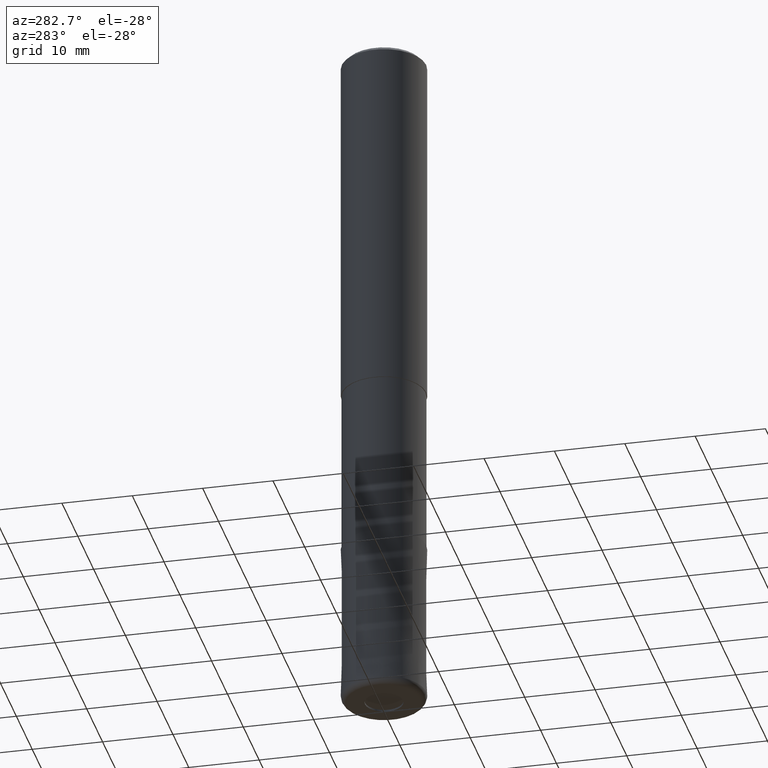
[diagram: clean part render]
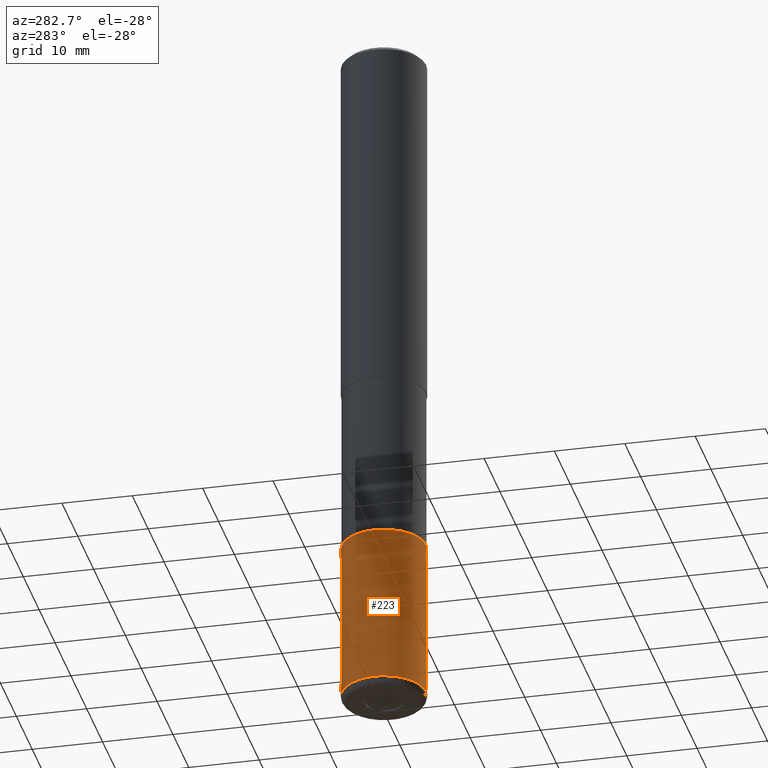
[diagram: same view with one face highlighted and labeled with its STEP entity id]
A machine part, auxiliary view. The second image highlights one B-rep face of the part: STEP entity #223.
In plain terms, the highlighted conical surface has half-angle 0 deg.
Its self-contained STEP definition (entity closure, byte-faithful):
#119=EDGE_CURVE('',#261,#245,#307,.T.);
#125=EDGE_CURVE('',#129,#261,#313,.T.);
#129=VERTEX_POINT('',#317);
#197=VERTEX_POINT('',#395);
#223=ADVANCED_FACE('',(#425),#426,.T.);
#231=EDGE_CURVE('',#197,#245,#437,.T.);
#245=VERTEX_POINT('',#452);
#261=VERTEX_POINT('',#469);
#283=EDGE_CURVE('',#197,#129,#494,.T.);
#307=LINE('',#511,#512);
#313=CIRCLE('',#520,5.9999);
#317=CARTESIAN_POINT('',(7.34751566229888E-016,-5.9999,-76.0));
#395=CARTESIAN_POINT('',(7.34763812293426E-016,-6.0,-99.0));
#425=FACE_OUTER_BOUND('',#655,.T.);
#426=CONICAL_SURFACE('',#656,5.99995,4.34782608691899E-006);
#437=CIRCLE('',#670,6.0);
#452=CARTESIAN_POINT('',(0.0,6.0,-99.0));
#469=CARTESIAN_POINT('',(0.0,5.9999,-76.0));
#494=LINE('',#744,#745);
#511=CARTESIAN_POINT('',(-7.34757689261657E-016,5.99995,-87.5));
#512=VECTOR('',#755,1.0);
#520=AXIS2_PLACEMENT_3D('',#759,#760,#761);
#655=EDGE_LOOP('',(#897,#898,#899,#900));
#656=AXIS2_PLACEMENT_3D('',#901,#902,#903);
#670=AXIS2_PLACEMENT_3D('',#921,#922,#923);
#744=CARTESIAN_POINT('',(7.34757689261657E-016,-5.99995,-87.5));
#745=VECTOR('',#994,1.0);
#755=DIRECTION('',(-5.32437545133891E-022,4.34782608690529E-006,-0.999999999990548));
#759=CARTESIAN_POINT('',(0.0,0.0,-76.0));
#760=DIRECTION('',(0.0,0.0,-1.0));
#761=DIRECTION('',(0.0,1.0,0.0));
#897=ORIENTED_EDGE('',*,*,#119,.T.);
#898=ORIENTED_EDGE('',*,*,#231,.F.);
#899=ORIENTED_EDGE('',*,*,#283,.T.);
#900=ORIENTED_EDGE('',*,*,#125,.T.);
#901=CARTESIAN_POINT('',(0.0,0.0,-87.5));
#902=DIRECTION('',(0.0,-0.0,-1.0));
#903=DIRECTION('',(0.0,1.0,0.0));
#921=CARTESIAN_POINT('',(0.0,0.0,-99.0));
#922=DIRECTION('',(0.0,0.0,-1.0));
#923=DIRECTION('',(0.0,1.0,0.0));
#994=DIRECTION('',(-5.32437545133891E-022,4.34782608690529E-006,0.999999999990548));